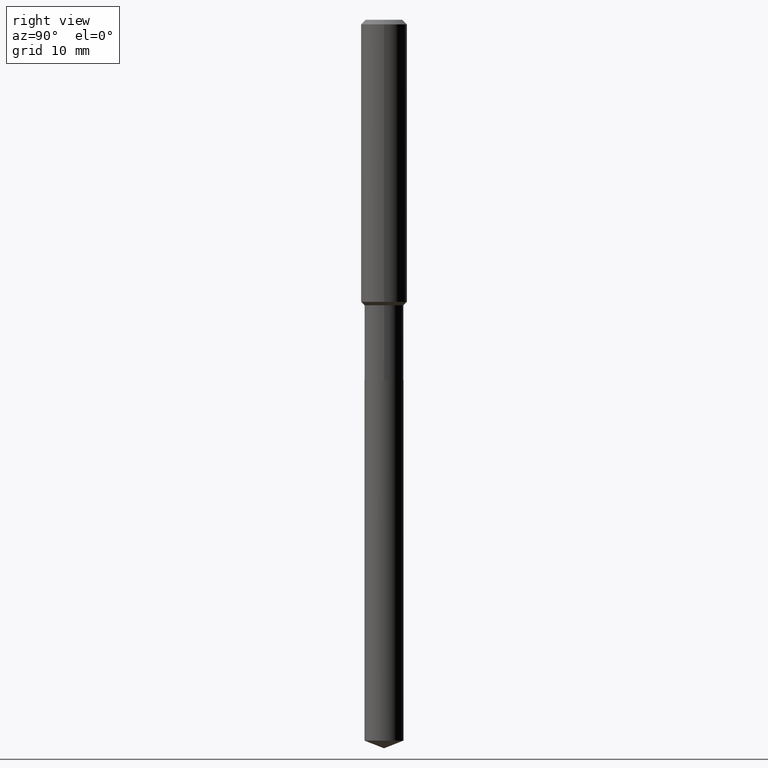
[diagram: clean part render]
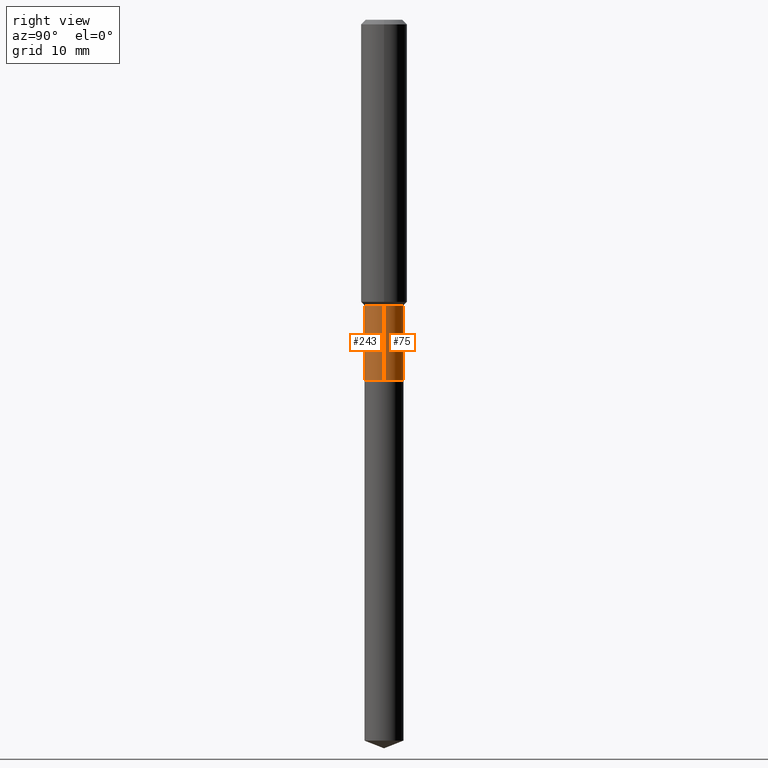
[diagram: same view with one multi-face feature highlighted, each face labeled with its STEP entity id]
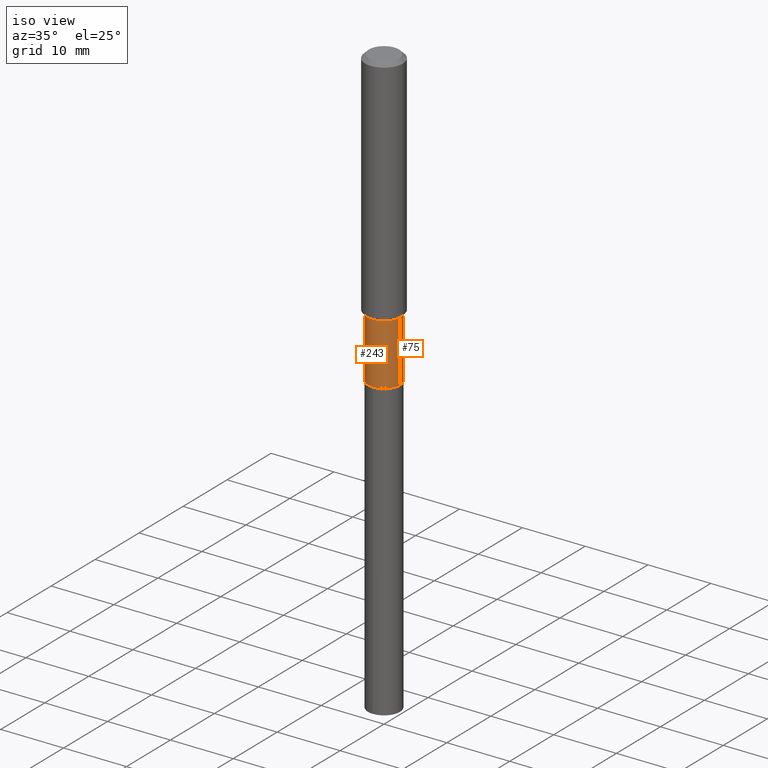
[diagram: same view with one multi-face feature highlighted, each face labeled with its STEP entity id]
A machine part, right view. The highlighted faces form ONE feature: a constant-radius fillet chain: 2 tangent blend faces with common blend radius 2.5502 mm. The faces share edges in the B-rep.
A second angle (iso view) of the same feature is appended — it is thin or edge-on in the first view.
Their STEP definitions:
[1] entity #243 (Cylinder):
#7 = DIRECTION ( 'NONE',  ( -2.445468806185136597E-29, 3.491481338843145583E-15, 1.000000000000000000 ) ) ;
#18 = CYLINDRICAL_SURFACE ( 'NONE', #446, 0.1003999999999999754 ) ;
#19 = EDGE_CURVE ( 'NONE', #51, #262, #176, .T. ) ;
#44 = CIRCLE ( 'NONE', #326, 0.1003999999999999893 ) ;
#47 = EDGE_LOOP ( 'NONE', ( #113, #178, #343, #109 ) ) ;
#51 = VERTEX_POINT ( 'NONE', #165 ) ;
#60 = DIRECTION ( 'NONE',  ( 1.000000000000000000, -6.982962677686265133E-15, 0.000000000000000000 ) ) ;
#63 = DIRECTION ( 'NONE',  ( 1.000000000000000000, -6.982962677686263555E-15, 0.000000000000000000 ) ) ;
#109 = ORIENTED_EDGE ( 'NONE', *, *, #19, .F. ) ;
#113 = ORIENTED_EDGE ( 'NONE', *, *, #260, .F. ) ;
#118 = DIRECTION ( 'NONE',  ( 1.000000000000000000, -6.982962677686266711E-15, 4.876176775795935232E-29 ) ) ;
#122 = VECTOR ( 'NONE', #436, 39.37007874015748143 ) ;
#152 = LINE ( 'NONE', #311, #300 ) ;
#161 = CARTESIAN_POINT ( 'NONE',  ( 0.1003999999999999615, -5.819601095583753067E-15, -1.466000000000000192 ) ) ;
#165 = CARTESIAN_POINT ( 'NONE',  ( -0.1003999999999999615, -5.075316579031853521E-15, -1.466000000000000192 ) ) ;
#176 = CIRCLE ( 'NONE', #289, 0.1003999999999999615 ) ;
#178 = ORIENTED_EDGE ( 'NONE', *, *, #395, .T. ) ;
#191 = DIRECTION ( 'NONE',  ( -2.445468806185136597E-29, 3.491481338843145583E-15, 1.000000000000000000 ) ) ;
#233 = DIRECTION ( 'NONE',  ( -2.445468806185136877E-29, 3.491481338843145188E-15, 1.000000000000000000 ) ) ;
#243 = ADVANCED_FACE ( 'NONE', ( #352 ), #18, .T. ) ;
#245 = DIRECTION ( 'NONE',  ( -2.445468806185136597E-29, 3.491481338843145583E-15, 1.000000000000000000 ) ) ;
#260 = EDGE_CURVE ( 'NONE', #490, #51, #152, .T. ) ;
#262 = VERTEX_POINT ( 'NONE', #161 ) ;
#289 = AXIS2_PLACEMENT_3D ( 'NONE', #386, #191, #60 ) ;
#300 = VECTOR ( 'NONE', #233, 39.37007874015748143 ) ;
#311 = CARTESIAN_POINT ( 'NONE',  ( -0.1003999999999999754, 7.133849067031404116E-16, -4.938610830615923592E-30 ) ) ;
#317 = CARTESIAN_POINT ( 'NONE',  ( 0.000000000000000000, 0.000000000000000000, 0.000000000000000000 ) ) ;
#320 = CARTESIAN_POINT ( 'NONE',  ( 4.523872744561885153E-29, -6.458891328725936072E-15, -1.849900000000000322 ) ) ;
#323 = CARTESIAN_POINT ( 'NONE',  ( 0.1003999999999999893, -7.159980781565636360E-15, -1.849900000000000322 ) ) ;
#326 = AXIS2_PLACEMENT_3D ( 'NONE', #320, #245, #63 ) ;
#330 = CARTESIAN_POINT ( 'NONE',  ( 0.1003999999999999754, -7.010894528397009782E-16, 4.895681482899117754E-30 ) ) ;
#343 = ORIENTED_EDGE ( 'NONE', *, *, #369, .T. ) ;
#352 = FACE_OUTER_BOUND ( 'NONE', #47, .T. ) ;
#369 = EDGE_CURVE ( 'NONE', #438, #262, #472, .T. ) ;
#386 = CARTESIAN_POINT ( 'NONE',  ( 3.585057269867410650E-29, -5.118511642744051990E-15, -1.466000000000000192 ) ) ;
#395 = EDGE_CURVE ( 'NONE', #490, #438, #44, .T. ) ;
#436 = DIRECTION ( 'NONE',  ( -2.445468806185136877E-29, 3.491481338843145188E-15, 1.000000000000000000 ) ) ;
#438 = VERTEX_POINT ( 'NONE', #323 ) ;
#446 = AXIS2_PLACEMENT_3D ( 'NONE', #317, #7, #118 ) ;
#472 = LINE ( 'NONE', #330, #122 ) ;
#486 = CARTESIAN_POINT ( 'NONE',  ( -0.1003999999999999893, -5.075316579031853521E-15, -1.849900000000000322 ) ) ;
#490 = VERTEX_POINT ( 'NONE', #486 ) ;
[2] entity #75 (Cylinder):
#1 = EDGE_CURVE ( 'NONE', #438, #490, #258, .T. ) ;
#16 = DIRECTION ( 'NONE',  ( -2.445468806185136597E-29, 3.491481338843145583E-15, 1.000000000000000000 ) ) ;
#21 = AXIS2_PLACEMENT_3D ( 'NONE', #353, #53, #91 ) ;
#51 = VERTEX_POINT ( 'NONE', #165 ) ;
#53 = DIRECTION ( 'NONE',  ( -2.445468806185136597E-29, 3.491481338843145583E-15, 1.000000000000000000 ) ) ;
#67 = DIRECTION ( 'NONE',  ( 1.000000000000000000, -6.982962677686265133E-15, 0.000000000000000000 ) ) ;
#69 = AXIS2_PLACEMENT_3D ( 'NONE', #72, #164, #67 ) ;
#72 = CARTESIAN_POINT ( 'NONE',  ( 3.585057269867410650E-29, -5.118511642744051990E-15, -1.466000000000000192 ) ) ;
#75 = ADVANCED_FACE ( 'NONE', ( #458 ), #351, .T. ) ;
#91 = DIRECTION ( 'NONE',  ( 1.000000000000000000, -6.982962677686263555E-15, 0.000000000000000000 ) ) ;
#122 = VECTOR ( 'NONE', #436, 39.37007874015748143 ) ;
#152 = LINE ( 'NONE', #311, #300 ) ;
#161 = CARTESIAN_POINT ( 'NONE',  ( 0.1003999999999999615, -5.819601095583753067E-15, -1.466000000000000192 ) ) ;
#164 = DIRECTION ( 'NONE',  ( -2.445468806185136597E-29, 3.491481338843145583E-15, 1.000000000000000000 ) ) ;
#165 = CARTESIAN_POINT ( 'NONE',  ( -0.1003999999999999615, -5.075316579031853521E-15, -1.466000000000000192 ) ) ;
#185 = ORIENTED_EDGE ( 'NONE', *, *, #260, .T. ) ;
#221 = EDGE_LOOP ( 'NONE', ( #346, #185, #370, #338 ) ) ;
#233 = DIRECTION ( 'NONE',  ( -2.445468806185136877E-29, 3.491481338843145188E-15, 1.000000000000000000 ) ) ;
#234 = DIRECTION ( 'NONE',  ( 1.000000000000000000, -6.982962677686266711E-15, 4.876176775795935232E-29 ) ) ;
#258 = CIRCLE ( 'NONE', #21, 0.1003999999999999893 ) ;
#260 = EDGE_CURVE ( 'NONE', #490, #51, #152, .T. ) ;
#262 = VERTEX_POINT ( 'NONE', #161 ) ;
#300 = VECTOR ( 'NONE', #233, 39.37007874015748143 ) ;
#311 = CARTESIAN_POINT ( 'NONE',  ( -0.1003999999999999754, 7.133849067031404116E-16, -4.938610830615923592E-30 ) ) ;
#323 = CARTESIAN_POINT ( 'NONE',  ( 0.1003999999999999893, -7.159980781565636360E-15, -1.849900000000000322 ) ) ;
#330 = CARTESIAN_POINT ( 'NONE',  ( 0.1003999999999999754, -7.010894528397009782E-16, 4.895681482899117754E-30 ) ) ;
#338 = ORIENTED_EDGE ( 'NONE', *, *, #369, .F. ) ;
#346 = ORIENTED_EDGE ( 'NONE', *, *, #1, .T. ) ;
#351 = CYLINDRICAL_SURFACE ( 'NONE', #456, 0.1003999999999999754 ) ;
#353 = CARTESIAN_POINT ( 'NONE',  ( 4.523872744561885153E-29, -6.458891328725936072E-15, -1.849900000000000322 ) ) ;
#365 = CIRCLE ( 'NONE', #69, 0.1003999999999999615 ) ;
#367 = EDGE_CURVE ( 'NONE', #262, #51, #365, .T. ) ;
#369 = EDGE_CURVE ( 'NONE', #438, #262, #472, .T. ) ;
#370 = ORIENTED_EDGE ( 'NONE', *, *, #367, .F. ) ;
#428 = CARTESIAN_POINT ( 'NONE',  ( 0.000000000000000000, 0.000000000000000000, 0.000000000000000000 ) ) ;
#436 = DIRECTION ( 'NONE',  ( -2.445468806185136877E-29, 3.491481338843145188E-15, 1.000000000000000000 ) ) ;
#438 = VERTEX_POINT ( 'NONE', #323 ) ;
#456 = AXIS2_PLACEMENT_3D ( 'NONE', #428, #16, #234 ) ;
#458 = FACE_OUTER_BOUND ( 'NONE', #221, .T. ) ;
#472 = LINE ( 'NONE', #330, #122 ) ;
#486 = CARTESIAN_POINT ( 'NONE',  ( -0.1003999999999999893, -5.075316579031853521E-15, -1.849900000000000322 ) ) ;
#490 = VERTEX_POINT ( 'NONE', #486 ) ;